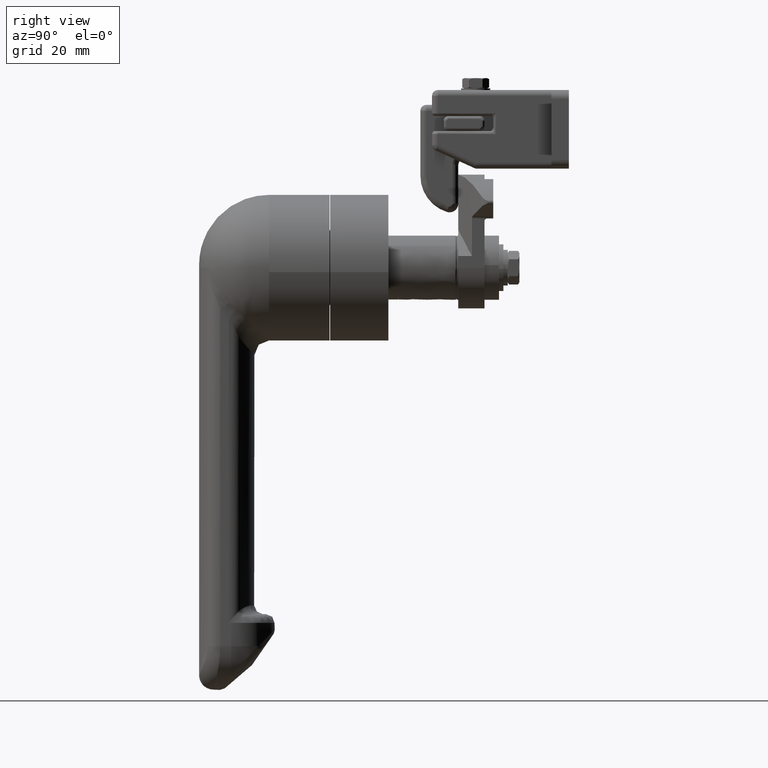
[diagram: clean part render]
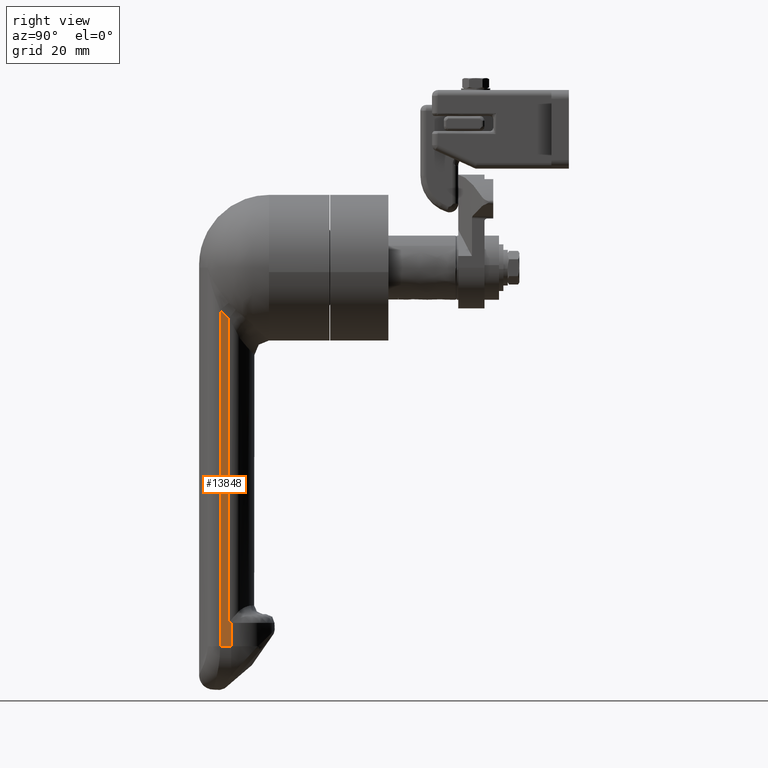
[diagram: same view with one face highlighted and labeled with its STEP entity id]
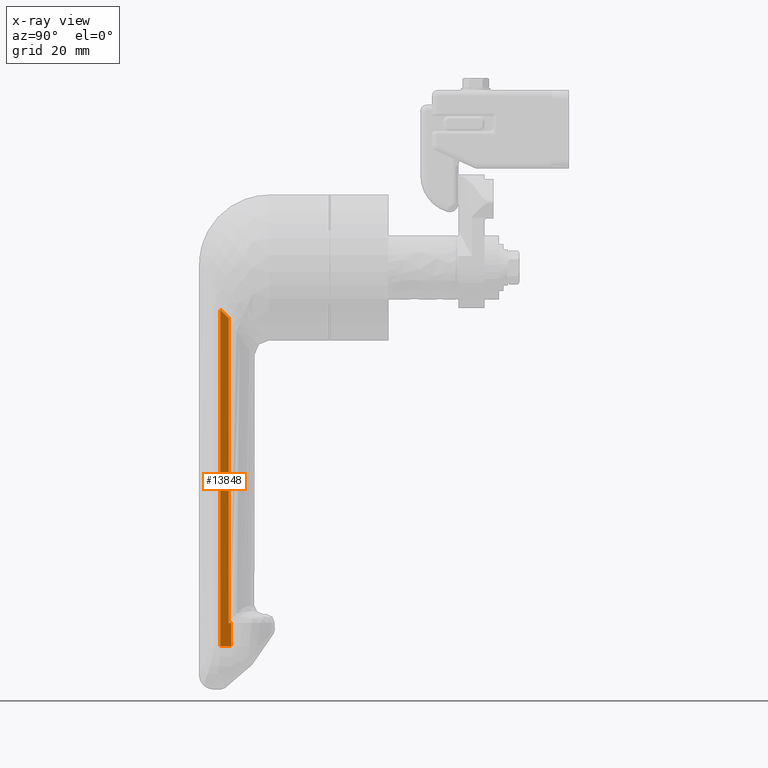
[diagram: x-ray of the same camera — body ghosted, the highlighted face saturated]
A machine part, right view. The second image highlights one B-rep face of the part: STEP entity #13848.
The next image is the same camera in x-ray: the body ghosted, the highlighted face saturated — about 0% of this face is hidden behind the body in this view.
In plain terms, the highlighted face is a freeform B-spline surface patch.
Its self-contained STEP definition (entity closure, byte-faithful):
#12048=CARTESIAN_POINT('',(15.0,-77.999999999647912,-130.0));
#12049=VERTEX_POINT('',#12048);
#12086=CARTESIAN_POINT('',(15.0,-77.999999999647912,-121.999999999998200));
#12087=VERTEX_POINT('',#12086);
#12112=CARTESIAN_POINT('',(15.0,-77.999999999647912,-121.999999999998200));
#12113=CARTESIAN_POINT('',(15.0,-77.999999999647912,-130.0));
#12114=QUASI_UNIFORM_CURVE('',1,(#12112,#12113),.UNSPECIFIED.,.F.,.U.);
#12115=EDGE_CURVE('',#12087,#12049,#12114,.T.);
#13513=CARTESIAN_POINT('',(15.0,-78.819660112148895,-121.999999999998200));
#13514=VERTEX_POINT('',#13513);
#13631=CARTESIAN_POINT('',(15.0,-77.999999999647912,-121.999999999998200));
#13632=CARTESIAN_POINT('',(15.0,-78.819660112148895,-121.999999999998200));
#13633=QUASI_UNIFORM_CURVE('',1,(#13631,#13632),.UNSPECIFIED.,.F.,.U.);
#13634=EDGE_CURVE('',#12087,#13514,#13633,.T.);
#13767=CARTESIAN_POINT('',(15.0,-81.733200530329412,-130.0));
#13768=VERTEX_POINT('',#13767);
#13782=CARTESIAN_POINT('',(15.0,-81.733200530329412,-14.469653662883220));
#13783=VERTEX_POINT('',#13782);
#13784=CARTESIAN_POINT('',(15.0,-81.733200530329412,-14.469653662883220));
#13785=CARTESIAN_POINT('',(15.0,-81.733200530329412,-130.0));
#13786=QUASI_UNIFORM_CURVE('',1,(#13784,#13785),.UNSPECIFIED.,.F.,.U.);
#13787=EDGE_CURVE('',#13783,#13768,#13786,.T.);
#13817=CARTESIAN_POINT('',(15.0,-81.919673889601285,-8.698913087264463));
#13818=CARTESIAN_POINT('',(15.0,-81.919673889601285,-135.770743674384110));
#13819=CARTESIAN_POINT('',(15.0,-77.813526540243771,-8.698913087264463));
#13820=CARTESIAN_POINT('',(15.0,-77.813526540243771,-135.770743674384110));
#13821=B_SPLINE_SURFACE_WITH_KNOTS('',1,1,((#13817,#13819),(#13818,#13820)),.UNSPECIFIED.,.F.,.F.,.U.,(2,2),(2,2),(0.0,127.071830587119710),(0.0,4.106147349357514),.UNSPECIFIED.);
#13822=ORIENTED_EDGE('',*,*,#13787,.T.);
#13823=CARTESIAN_POINT('',(15.0,-81.733200530329412,-130.0));
#13824=CARTESIAN_POINT('',(15.0,-77.999999999647912,-130.0));
#13825=QUASI_UNIFORM_CURVE('',1,(#13823,#13824),.UNSPECIFIED.,.F.,.U.);
#13826=EDGE_CURVE('',#13768,#12049,#13825,.T.);
#13827=ORIENTED_EDGE('',*,*,#13826,.T.);
#13828=ORIENTED_EDGE('',*,*,#12115,.F.);
#13829=ORIENTED_EDGE('',*,*,#13634,.T.);
#13830=CARTESIAN_POINT('',(15.0,-78.819660112148895,-17.378373228677749));
#13831=VERTEX_POINT('',#13830);
#13832=CARTESIAN_POINT('',(15.0,-78.819660112148895,-17.378373228677749));
#13833=CARTESIAN_POINT('',(15.0,-78.819660112148895,-121.999999999998200));
#13834=QUASI_UNIFORM_CURVE('',1,(#13832,#13833),.UNSPECIFIED.,.F.,.U.);
#13835=EDGE_CURVE('',#13831,#13514,#13834,.T.);
#13836=ORIENTED_EDGE('',*,*,#13835,.F.);
#13837=CARTESIAN_POINT('',(15.0,-78.819660112148895,-17.378373228677798));
#13838=CARTESIAN_POINT('',(15.0,-79.350920698631313,-16.939332844545881));
#13839=CARTESIAN_POINT('',(15.0,-79.859128139536708,-16.477201107024339));
#13840=CARTESIAN_POINT('',(15.0,-80.830237329518326,-15.507556851424191));
#13841=CARTESIAN_POINT('',(15.0,-81.293137831857095,-15.000043084541719));
#13842=CARTESIAN_POINT('',(15.0,-81.733200530329412,-14.469653662883200));
#13843=B_SPLINE_CURVE_WITH_KNOTS('',3,(#13837,#13838,#13839,#13840,#13841,#13842),.UNSPECIFIED.,.F.,.U.,(4,2,4),(0.0,0.500000000000000,1.0),.UNSPECIFIED.);
#13844=EDGE_CURVE('',#13831,#13783,#13843,.T.);
#13845=ORIENTED_EDGE('',*,*,#13844,.T.);
#13846=EDGE_LOOP('',(#13822,#13827,#13828,#13829,#13836,#13845));
#13847=FACE_OUTER_BOUND('',#13846,.T.);
#13848=ADVANCED_FACE('',(#13847),#13821,.T.);